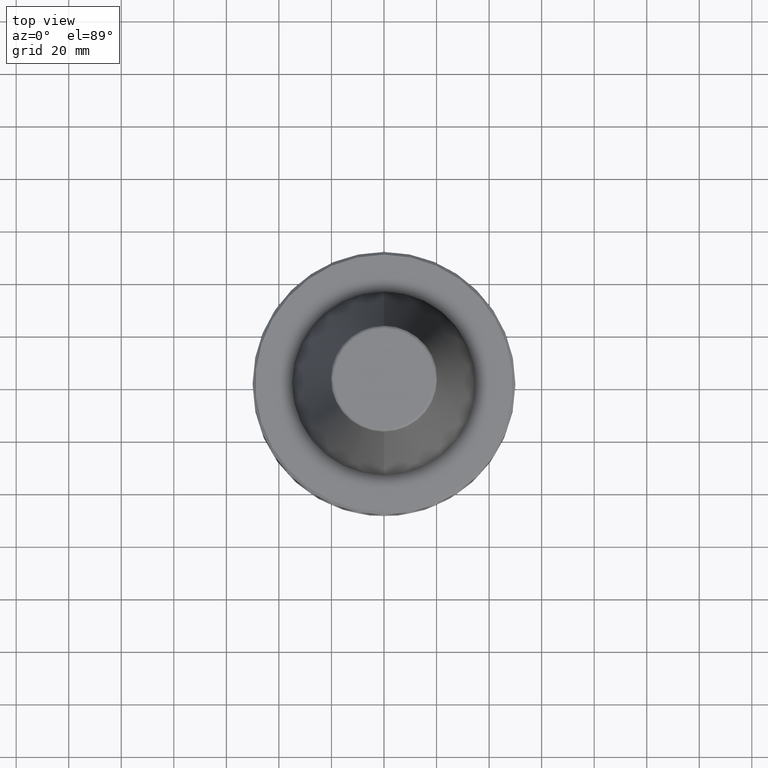
[diagram: clean part render]
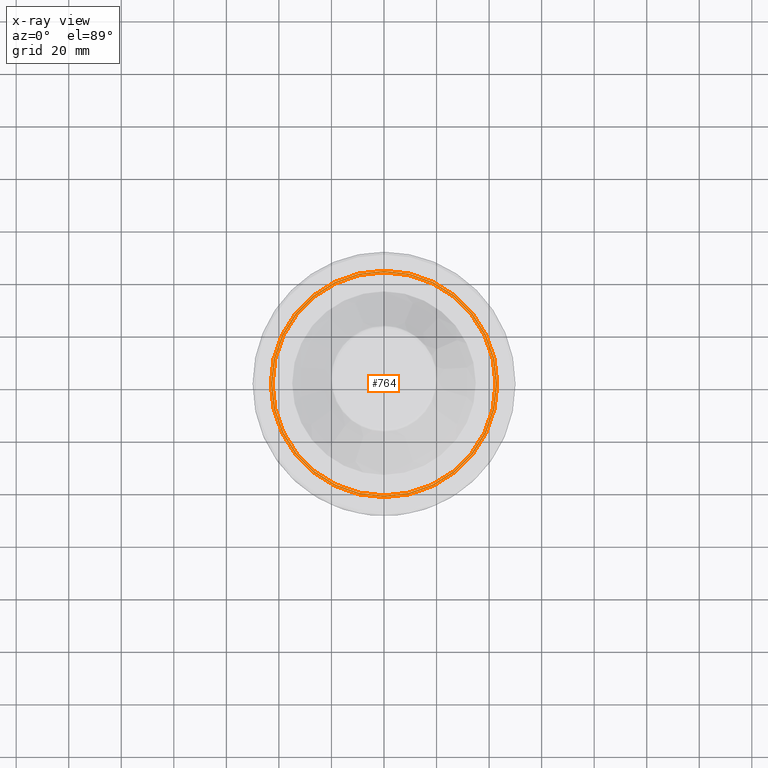
[diagram: x-ray — body ghosted, one internal face saturated and labeled with its STEP entity id]
A machine part, top view, then the same camera in x-ray: the body is ghosted and one INTERNAL B-rep face — a face not visible from any outside direction — is saturated and labeled: STEP entity #764.
In plain terms, the highlighted planar face has unit normal (0, 0, 1).
Its self-contained STEP definition (entity closure, byte-faithful):
#64 = VERTEX_POINT ( 'NONE', #2454 ) ;
#110 = FACE_OUTER_BOUND ( 'NONE', #772, .T. ) ;
#139 = ORIENTED_EDGE ( 'NONE', *, *, #319, .F. ) ;
#217 = EDGE_LOOP ( 'NONE', ( #139, #1161 ) ) ;
#279 = VERTEX_POINT ( 'NONE', #1825 ) ;
#305 = ORIENTED_EDGE ( 'NONE', *, *, #746, .F. ) ;
#319 = EDGE_CURVE ( 'NONE', #279, #815, #429, .T. ) ;
#349 = VERTEX_POINT ( 'NONE', #1724 ) ;
#429 = CIRCLE ( 'NONE', #570, 42.50000000000000000 ) ;
#519 = CIRCLE ( 'NONE', #1964, 43.07217782649103600 ) ;
#537 = FACE_BOUND ( 'NONE', #217, .T. ) ;
#570 = AXIS2_PLACEMENT_3D ( 'NONE', #1744, #1742, #1738 ) ;
#574 = DIRECTION ( 'NONE',  ( 1.000000000000000000, 0.0000000000000000000, 0.0000000000000000000 ) ) ;
#575 = DIRECTION ( 'NONE',  ( -0.0000000000000000000, -0.0000000000000000000, -1.000000000000000000 ) ) ;
#578 = CARTESIAN_POINT ( 'NONE',  ( 0.0000000000000000000, 0.0000000000000000000, -19.70000000000001000 ) ) ;
#746 = EDGE_CURVE ( 'NONE', #349, #64, #1811, .T. ) ;
#764 = ADVANCED_FACE ( 'NONE', ( #110, #537 ), #1071, .F. ) ;
#772 = EDGE_LOOP ( 'NONE', ( #1938, #305 ) ) ;
#815 = VERTEX_POINT ( 'NONE', #1039 ) ;
#1039 = CARTESIAN_POINT ( 'NONE',  ( -42.50000000000000000, 5.204748896376250900E-015, -19.70000000000001000 ) ) ;
#1048 = DIRECTION ( 'NONE',  ( 1.000000000000000000, 0.0000000000000000000, -0.0000000000000000000 ) ) ;
#1053 = DIRECTION ( 'NONE',  ( 0.0000000000000000000, 0.0000000000000000000, 1.000000000000000000 ) ) ;
#1071 = PLANE ( 'NONE',  #2633 ) ;
#1073 = CARTESIAN_POINT ( 'NONE',  ( 0.0000000000000000000, 43.07217782649103600, -19.70000000000000300 ) ) ;
#1103 = DIRECTION ( 'NONE',  ( 1.000000000000000000, 0.0000000000000000000, 0.0000000000000000000 ) ) ;
#1106 = DIRECTION ( 'NONE',  ( 0.0000000000000000000, -0.0000000000000000000, 1.000000000000000000 ) ) ;
#1108 = CARTESIAN_POINT ( 'NONE',  ( 0.0000000000000000000, 0.0000000000000000000, -19.70000000000001000 ) ) ;
#1161 = ORIENTED_EDGE ( 'NONE', *, *, #1217, .F. ) ;
#1217 = EDGE_CURVE ( 'NONE', #815, #279, #2112, .T. ) ;
#1724 = CARTESIAN_POINT ( 'NONE',  ( -43.07217782649103600, 5.699027233244276000E-015, -19.70000000000001000 ) ) ;
#1738 = DIRECTION ( 'NONE',  ( 1.000000000000000000, 0.0000000000000000000, 0.0000000000000000000 ) ) ;
#1742 = DIRECTION ( 'NONE',  ( -0.0000000000000000000, -0.0000000000000000000, -1.000000000000000000 ) ) ;
#1744 = CARTESIAN_POINT ( 'NONE',  ( 0.0000000000000000000, 0.0000000000000000000, -19.70000000000001000 ) ) ;
#1811 = CIRCLE ( 'NONE', #2696, 43.07217782649103600 ) ;
#1825 = CARTESIAN_POINT ( 'NONE',  ( 42.50000000000000000, 0.0000000000000000000, -19.70000000000001000 ) ) ;
#1938 = ORIENTED_EDGE ( 'NONE', *, *, #2632, .F. ) ;
#1964 = AXIS2_PLACEMENT_3D ( 'NONE', #2703, #2747, #2404 ) ;
#2112 = CIRCLE ( 'NONE', #2287, 42.50000000000000000 ) ;
#2287 = AXIS2_PLACEMENT_3D ( 'NONE', #578, #575, #574 ) ;
#2404 = DIRECTION ( 'NONE',  ( 1.000000000000000000, 0.0000000000000000000, 0.0000000000000000000 ) ) ;
#2454 = CARTESIAN_POINT ( 'NONE',  ( 43.07217782649103600, 0.0000000000000000000, -19.70000000000001000 ) ) ;
#2632 = EDGE_CURVE ( 'NONE', #64, #349, #519, .T. ) ;
#2633 = AXIS2_PLACEMENT_3D ( 'NONE', #1073, #1053, #1048 ) ;
#2696 = AXIS2_PLACEMENT_3D ( 'NONE', #1108, #1106, #1103 ) ;
#2703 = CARTESIAN_POINT ( 'NONE',  ( 0.0000000000000000000, 0.0000000000000000000, -19.70000000000001000 ) ) ;
#2747 = DIRECTION ( 'NONE',  ( 0.0000000000000000000, -0.0000000000000000000, 1.000000000000000000 ) ) ;